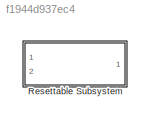
MODEL slx_f1944d937ec4
KIND model
CONFIG AbsTol = auto
CONFIG FixedStep = auto
CONFIG MaxStep = auto
CONFIG MinStep = auto
CONFIG RelTol = 1e-3
CONFIG SampleTimeConstraint = Unconstrained
CONFIG Solver = ode45
CONFIG SolverMode = SingleTasking
CONFIG SolverName = ode45
CONFIG StartTime = 0.0
CONFIG StopTime = 10.0
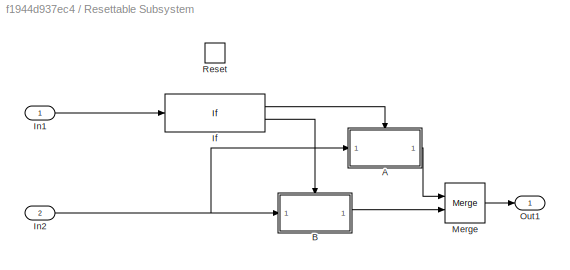
BLOCK [SubSystem] Resettable Subsystem
  Ports = [2, 1, 0, 0, 0, 0, 0, 0, 1]
  RequestExecContextInheritance = off
  TreatAsAtomicUnit = on
  Variant = off
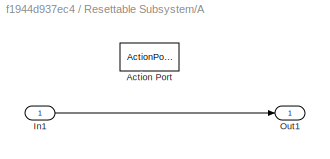
BLOCK [SubSystem] Resettable Subsystem/A
  Ports = [1, 1, 0, 0, 0, 0, 0, 1]
  RequestExecContextInheritance = off
  TreatAsAtomicUnit = on
  Variant = off
BLOCK [ActionPort] Resettable Subsystem/A/Action Port
  ActionType = then
BLOCK [Inport] Resettable Subsystem/A/In1
  IconDisplay = Port number
BLOCK [Outport] Resettable Subsystem/A/Out1
  IconDisplay = Port number
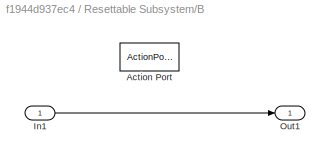
BLOCK [SubSystem] Resettable Subsystem/B
  Ports = [1, 1, 0, 0, 0, 0, 0, 1]
  RequestExecContextInheritance = off
  TreatAsAtomicUnit = on
  Variant = off
BLOCK [ActionPort] Resettable Subsystem/B/Action Port
  ActionType = else
BLOCK [Inport] Resettable Subsystem/B/In1
  IconDisplay = Port number
BLOCK [Outport] Resettable Subsystem/B/Out1
  IconDisplay = Port number
BLOCK [If] Resettable Subsystem/If
  Ports = [1, 2]
BLOCK [Inport] Resettable Subsystem/In1
  IconDisplay = Port number
BLOCK [Inport] Resettable Subsystem/In2
  IconDisplay = Port number
  Port = 2
BLOCK [Merge] Resettable Subsystem/Merge
  Ports = [2, 1]
BLOCK [Outport] Resettable Subsystem/Out1
  IconDisplay = Port number
BLOCK [ResetPort] Resettable Subsystem/Reset
  DisableCoverage = on
LINE Resettable Subsystem/A/In1:1 -> Resettable Subsystem/A/Out1:1
LINE Resettable Subsystem/A:1 -> Resettable Subsystem/Merge:1
LINE Resettable Subsystem/B/In1:1 -> Resettable Subsystem/B/Out1:1
LINE Resettable Subsystem/B:1 -> Resettable Subsystem/Merge:2
LINE Resettable Subsystem/If:1 -> Resettable Subsystem/A:ifaction
LINE Resettable Subsystem/If:2 -> Resettable Subsystem/B:ifaction
LINE Resettable Subsystem/In1:1 -> Resettable Subsystem/If:1
NET Resettable Subsystem/In2:1 -> Resettable Subsystem/A:1, Resettable Subsystem/B:1
LINE Resettable Subsystem/Merge:1 -> Resettable Subsystem/Out1:1
note: NET lines group one-source signal fan-out (src -> all destinations, sorted); 1:1 wires keep LINE
